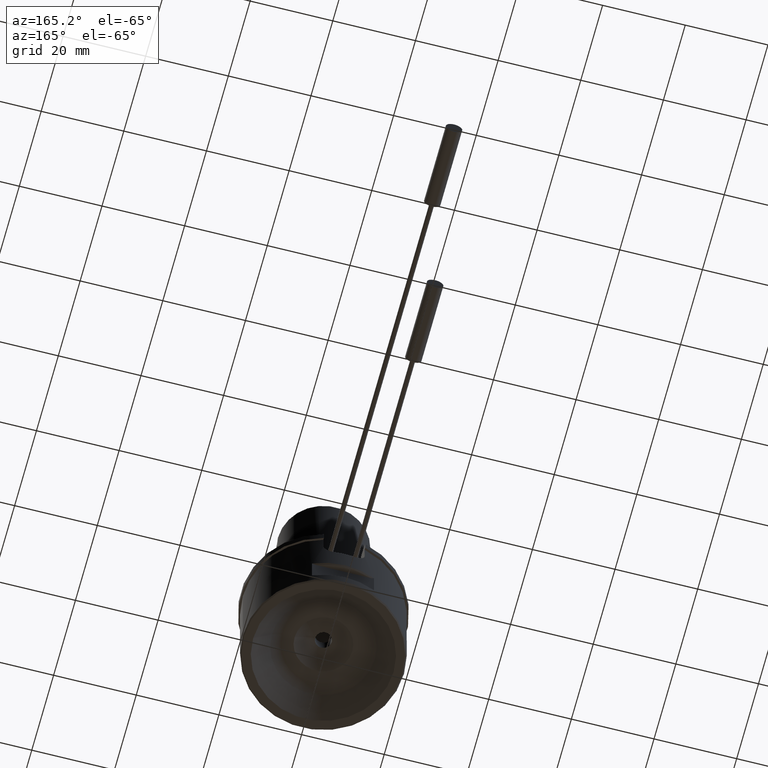
[diagram: clean part render]
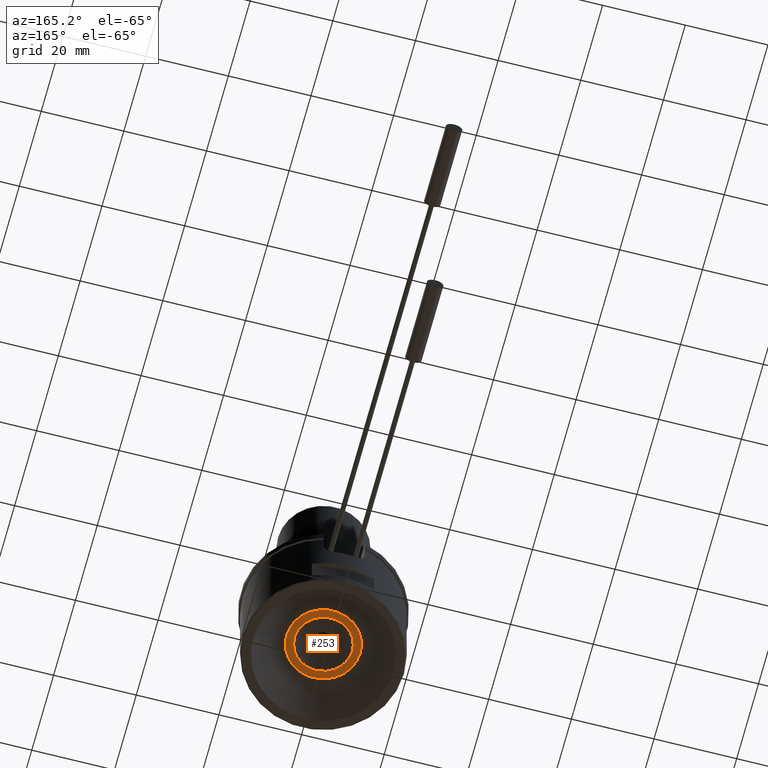
[diagram: same view with one face highlighted and labeled with its STEP entity id]
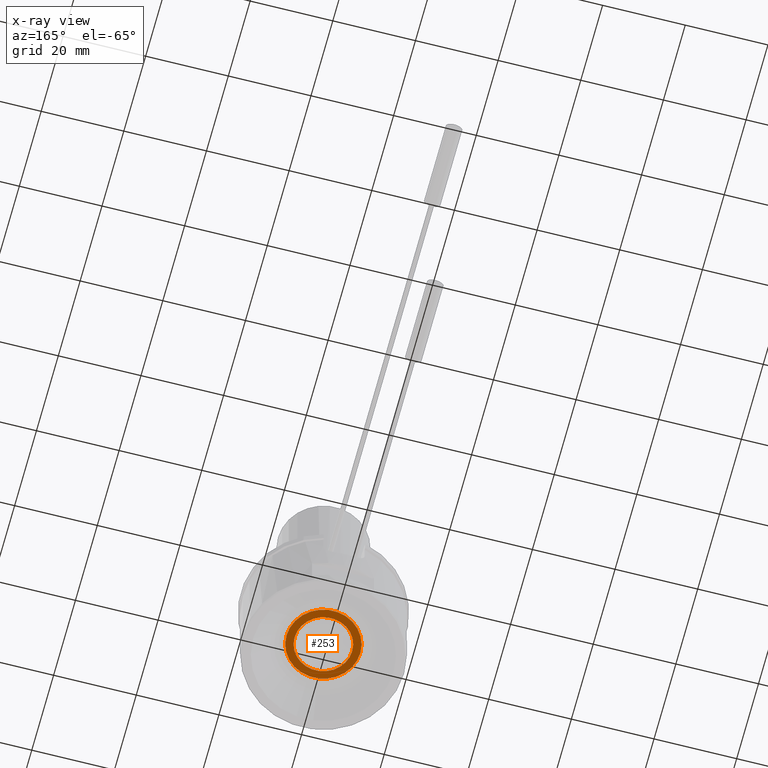
[diagram: x-ray of the same camera — body ghosted, the highlighted face saturated]
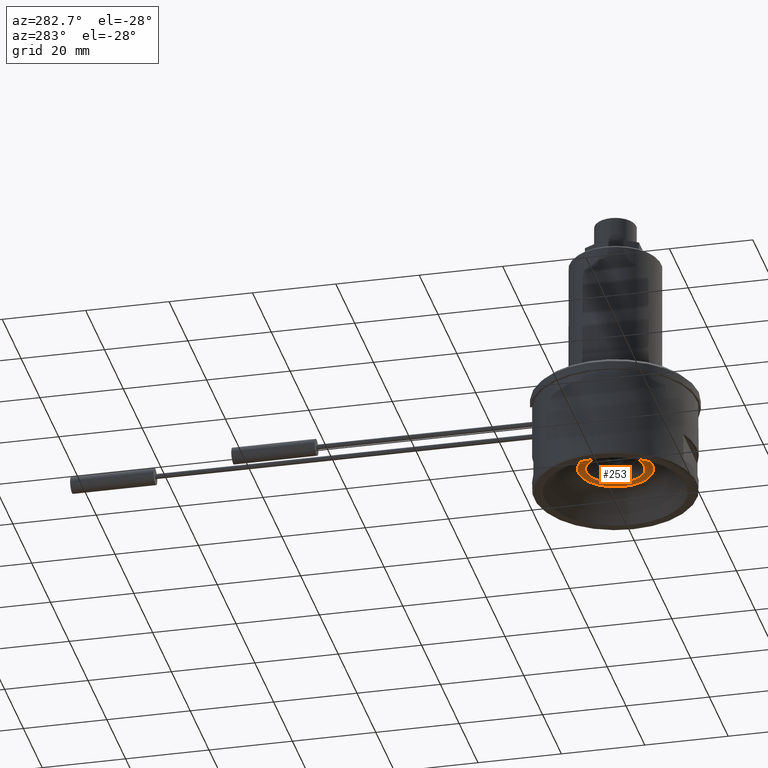
[diagram: same view with one face highlighted and labeled with its STEP entity id]
A machine part, auxiliary view. The second image highlights one B-rep face of the part: STEP entity #253.
The next image is the same camera in x-ray: the body ghosted, the highlighted face saturated — about 0% of this face is hidden behind the body in this view.
A second angle (auxiliary view) of the same face is appended — the face is thin or edge-on in the first view.
In plain terms, the highlighted planar face has unit normal (0, 0, 1).
Its self-contained STEP definition (entity closure, byte-faithful):
#65=PLANE('',#1182);
#253=ADVANCED_FACE('',(#375,#376),#65,.F.);
#375=FACE_BOUND('',#455,.T.);
#376=FACE_BOUND('',#456,.T.);
#455=EDGE_LOOP('',(#632));
#456=EDGE_LOOP('',(#633));
#632=ORIENTED_EDGE('',*,*,#987,.T.);
#633=ORIENTED_EDGE('',*,*,#986,.F.);
#863=VERTEX_POINT('',#2071);
#864=VERTEX_POINT('',#2074);
#986=EDGE_CURVE('',#863,#863,#1085,.T.);
#987=EDGE_CURVE('',#864,#864,#1086,.T.);
#1085=CIRCLE('',#1179,6.98212002188452);
#1086=CIRCLE('',#1181,8.92893218813457);
#1179=AXIS2_PLACEMENT_3D('',#2070,#1413,#1414);
#1181=AXIS2_PLACEMENT_3D('',#2073,#1417,#1418);
#1182=AXIS2_PLACEMENT_3D('',#2075,#1419,#1420);
#1413=DIRECTION('',(0.,0.,-1.));
#1414=DIRECTION('',(1.,0.,0.));
#1417=DIRECTION('',(0.,0.,-1.));
#1418=DIRECTION('',(1.,0.,0.));
#1419=DIRECTION('',(0.,0.,1.));
#1420=DIRECTION('',(1.,0.,0.));
#2070=CARTESIAN_POINT('',(0.,0.,5.99999999999996));
#2071=CARTESIAN_POINT('',(6.98212002188452,0.,5.99999999999996));
#2073=CARTESIAN_POINT('',(0.,0.,5.99999999999997));
#2074=CARTESIAN_POINT('',(8.92893218813457,0.,5.99999999999997));
#2075=CARTESIAN_POINT('',(0.,-6.98212002188452,5.99999999999997));